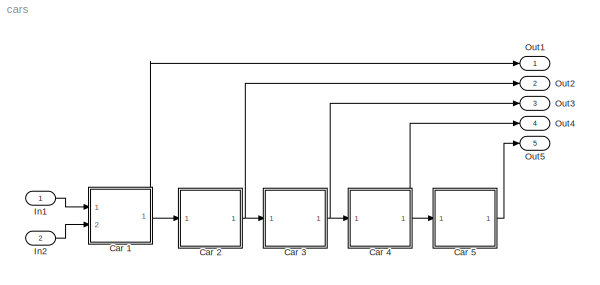
MODEL cars
KIND model
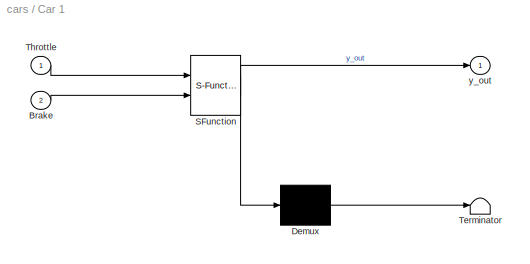
BLOCK [SubSystem] Car 1
  ErrorFcn = Stateflow.Translate.translate
  PermitHierarchicalResolution = ExplicitOnly
  Ports = [2, 1]
  RequestExecContextInheritance = off
  SFBlockType = Chart
  SID = 20
  TreatAsAtomicUnit = on
BLOCK [Demux] Car 1/ Demux 
  Outputs = 1
  Ports = [1, 1]
  SID = 20::90
BLOCK [S-Function] Car 1/ SFunction 
  EnableBusSupport = on
  FunctionName = sf_sfun
  PortCounts = [2 2]
  Ports = [2, 2]
  SFcnIsStateOwnerBlock = off
  SFunctionDeploymentMode = off
  SID = 20::89
  Tag = Stateflow S-Function cars 1
BLOCK [Terminator] Car 1/ Terminator 
  SID = 20::91
BLOCK [Inport] Car 1/Brake
  IconDisplay = Port number
  Port = 2
  SID = 20::93
BLOCK [Inport] Car 1/Throttle
  IconDisplay = Port number
  SID = 20::94
BLOCK [Outport] Car 1/y_out
  IconDisplay = Port number
  SID = 20::95
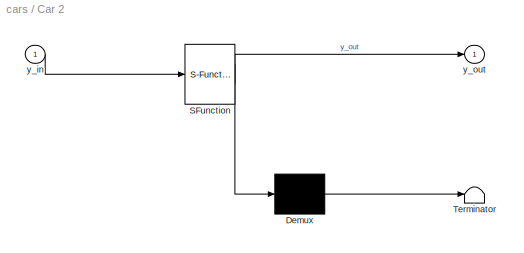
BLOCK [SubSystem] Car 2
  ErrorFcn = Stateflow.Translate.translate
  PermitHierarchicalResolution = ExplicitOnly
  Ports = [1, 1]
  RequestExecContextInheritance = off
  SFBlockType = Chart
  SID = 1
  TreatAsAtomicUnit = on
BLOCK [Demux] Car 2/ Demux 
  Outputs = 1
  Ports = [1, 1]
  SID = 1::95
BLOCK [S-Function] Car 2/ SFunction 
  EnableBusSupport = on
  FunctionName = sf_sfun
  PortCounts = [1 2]
  Ports = [1, 2]
  SFcnIsStateOwnerBlock = off
  SFunctionDeploymentMode = off
  SID = 1::94
  Tag = Stateflow S-Function cars 3
BLOCK [Terminator] Car 2/ Terminator 
  SID = 1::96
BLOCK [Inport] Car 2/y_in
  IconDisplay = Port number
  SID = 1::102
BLOCK [Outport] Car 2/y_out
  IconDisplay = Port number
  SID = 1::90
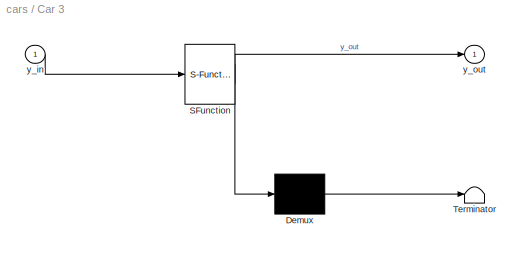
BLOCK [SubSystem] Car 3
  ErrorFcn = Stateflow.Translate.translate
  PermitHierarchicalResolution = ExplicitOnly
  Ports = [1, 1]
  RequestExecContextInheritance = off
  SFBlockType = Chart
  SID = 21
  TreatAsAtomicUnit = on
BLOCK [Demux] Car 3/ Demux 
  Outputs = 1
  Ports = [1, 1]
  SID = 21::95
BLOCK [S-Function] Car 3/ SFunction 
  EnableBusSupport = on
  FunctionName = sf_sfun
  PortCounts = [1 2]
  Ports = [1, 2]
  SFcnIsStateOwnerBlock = off
  SFunctionDeploymentMode = off
  SID = 21::94
  Tag = Stateflow S-Function cars 2
BLOCK [Terminator] Car 3/ Terminator 
  SID = 21::96
BLOCK [Inport] Car 3/y_in
  IconDisplay = Port number
  SID = 21::102
BLOCK [Outport] Car 3/y_out
  IconDisplay = Port number
  SID = 21::90
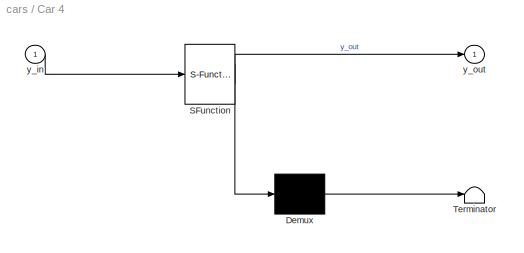
BLOCK [SubSystem] Car 4
  ErrorFcn = Stateflow.Translate.translate
  PermitHierarchicalResolution = ExplicitOnly
  Ports = [1, 1]
  RequestExecContextInheritance = off
  SFBlockType = Chart
  SID = 23
  TreatAsAtomicUnit = on
BLOCK [Demux] Car 4/ Demux 
  Outputs = 1
  Ports = [1, 1]
  SID = 23::95
BLOCK [S-Function] Car 4/ SFunction 
  EnableBusSupport = on
  FunctionName = sf_sfun
  PortCounts = [1 2]
  Ports = [1, 2]
  SFcnIsStateOwnerBlock = off
  SFunctionDeploymentMode = off
  SID = 23::94
  Tag = Stateflow S-Function cars 4
BLOCK [Terminator] Car 4/ Terminator 
  SID = 23::96
BLOCK [Inport] Car 4/y_in
  IconDisplay = Port number
  SID = 23::102
BLOCK [Outport] Car 4/y_out
  IconDisplay = Port number
  SID = 23::103
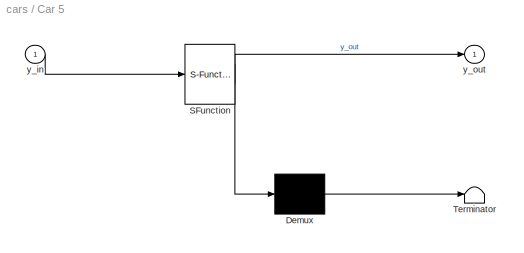
BLOCK [SubSystem] Car 5
  ErrorFcn = Stateflow.Translate.translate
  PermitHierarchicalResolution = ExplicitOnly
  Ports = [1, 1]
  RequestExecContextInheritance = off
  SFBlockType = Chart
  SID = 25
  TreatAsAtomicUnit = on
BLOCK [Demux] Car 5/ Demux 
  Outputs = 1
  Ports = [1, 1]
  SID = 25::95
BLOCK [S-Function] Car 5/ SFunction 
  EnableBusSupport = on
  FunctionName = sf_sfun
  PortCounts = [1 2]
  Ports = [1, 2]
  SFcnIsStateOwnerBlock = off
  SFunctionDeploymentMode = off
  SID = 25::94
  Tag = Stateflow S-Function cars 5
BLOCK [Terminator] Car 5/ Terminator 
  SID = 25::96
BLOCK [Inport] Car 5/y_in
  IconDisplay = Port number
  SID = 25::102
BLOCK [Outport] Car 5/y_out
  IconDisplay = Port number
  SID = 25::90
BLOCK [Inport] In1
  IconDisplay = Port number
  SID = 35
BLOCK [Inport] In2
  IconDisplay = Port number
  Port = 2
  SID = 36
BLOCK [Outport] Out1
  IconDisplay = Port number
  SID = 29
BLOCK [Outport] Out2
  IconDisplay = Port number
  Port = 2
  SID = 30
BLOCK [Outport] Out3
  IconDisplay = Port number
  Port = 3
  SID = 31
BLOCK [Outport] Out4
  IconDisplay = Port number
  Port = 4
  SID = 32
BLOCK [Outport] Out5
  IconDisplay = Port number
  Port = 5
  SID = 37
LINE Car 1/ Demux :1 -> Car 1/ Terminator :1
LINE Car 1/ SFunction :1 -> Car 1/ Demux :1
LINE Car 1/ SFunction :2 -> Car 1/y_out:1
LINE Car 1/Brake:1 -> Car 1/ SFunction :2
LINE Car 1/Throttle:1 -> Car 1/ SFunction :1
NET Car 1:1 -> Car 2:1, Out1:1
LINE Car 2/ Demux :1 -> Car 2/ Terminator :1
LINE Car 2/ SFunction :1 -> Car 2/ Demux :1
LINE Car 2/ SFunction :2 -> Car 2/y_out:1
LINE Car 2/y_in:1 -> Car 2/ SFunction :1
NET Car 2:1 -> Car 3:1, Out2:1
LINE Car 3/ Demux :1 -> Car 3/ Terminator :1
LINE Car 3/ SFunction :1 -> Car 3/ Demux :1
LINE Car 3/ SFunction :2 -> Car 3/y_out:1
LINE Car 3/y_in:1 -> Car 3/ SFunction :1
NET Car 3:1 -> Car 4:1, Out3:1
LINE Car 4/ Demux :1 -> Car 4/ Terminator :1
LINE Car 4/ SFunction :1 -> Car 4/ Demux :1
LINE Car 4/ SFunction :2 -> Car 4/y_out:1
LINE Car 4/y_in:1 -> Car 4/ SFunction :1
NET Car 4:1 -> Car 5:1, Out4:1
LINE Car 5/ Demux :1 -> Car 5/ Terminator :1
LINE Car 5/ SFunction :1 -> Car 5/ Demux :1
LINE Car 5/ SFunction :2 -> Car 5/y_out:1
LINE Car 5/y_in:1 -> Car 5/ SFunction :1
LINE Car 5:1 -> Out5:1
LINE In1:1 -> Car 1:1
LINE In2:1 -> Car 1:2
note: NET lines group one-source signal fan-out (src -> all destinations, sorted); 1:1 wires keep LINE
CHART Car 1 states=1 transitions=1
  STATE_LABEL 'Run\\nduring:\\nv_dot = -Throttle - Brake * v;\\ny_dot = v;\\ny_out = y;\\n'
CHART Car 3 states=3 transitions=5
  STATE_LABEL 'Chasing\\nduring:\\nv_dot = 1;\\ny_dot = -v;\\ny_out = y;'
  STATE_LABEL 'Keeping \\nduring:\\ny_dot = v;\\ny_out = y;\\n'
  STATE_LABEL 'Braking\\nduring:\\nv_dot = -v;\\ny_dot = -v;\\ny_out = y;'
CHART Car 2 states=3 transitions=5
  STATE_LABEL 'Chasing\\nduring:\\nv_dot = 1;\\ny_dot = -v;\\ny_out = y;'
  STATE_LABEL 'Keeping \\nduring:\\ny_dot = v;\\ny_out = y;\\n'
  STATE_LABEL 'Braking\\nduring:\\nv_dot = -v;\\ny_dot = -v;\\ny_out = y;'
CHART Car 4 states=3 transitions=5
  STATE_LABEL 'Chasing\\nduring:\\nv_dot = 1;\\ny_dot = -v;\\ny_out = y;'
  STATE_LABEL 'Keeping \\nduring:\\ny_dot = v;\\ny_out = y;\\n'
  STATE_LABEL 'Braking\\nduring:\\nv_dot = -v;\\ny_dot = -v;\\ny_out = y;'
CHART Car 5 states=3 transitions=5
  STATE_LABEL 'Keeping \\nduring:\\ny_dot = v;\\ny_out = y;\\n'
  STATE_LABEL 'Chasing\\nduring:\\nv_dot = 1;\\ny_dot = -v;\\ny_out = y;'
  STATE_LABEL 'Braking\\nduring:\\nv_dot = -v;\\ny_dot = -v;\\ny_out = y;'
